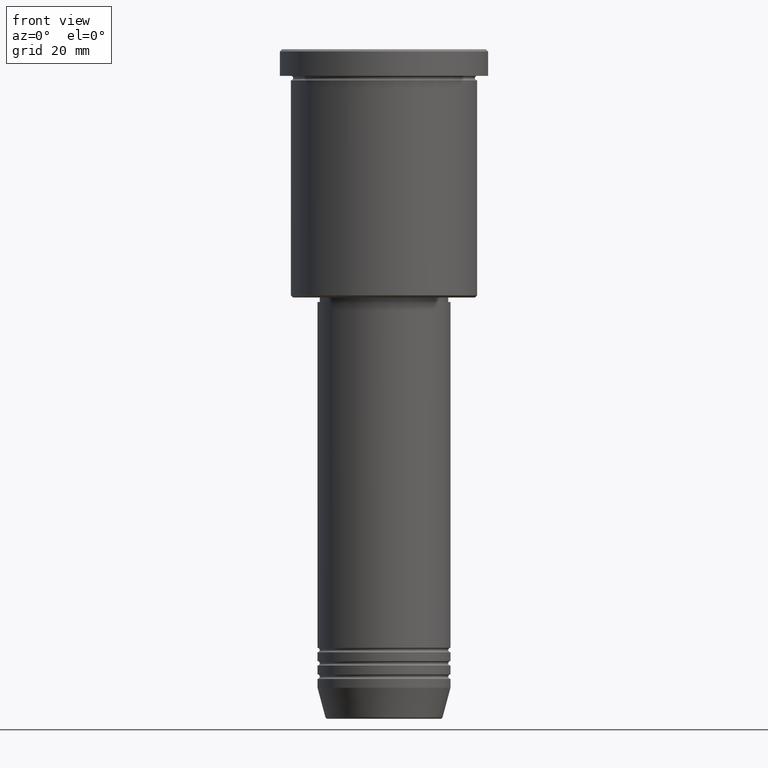
[diagram: clean part render]
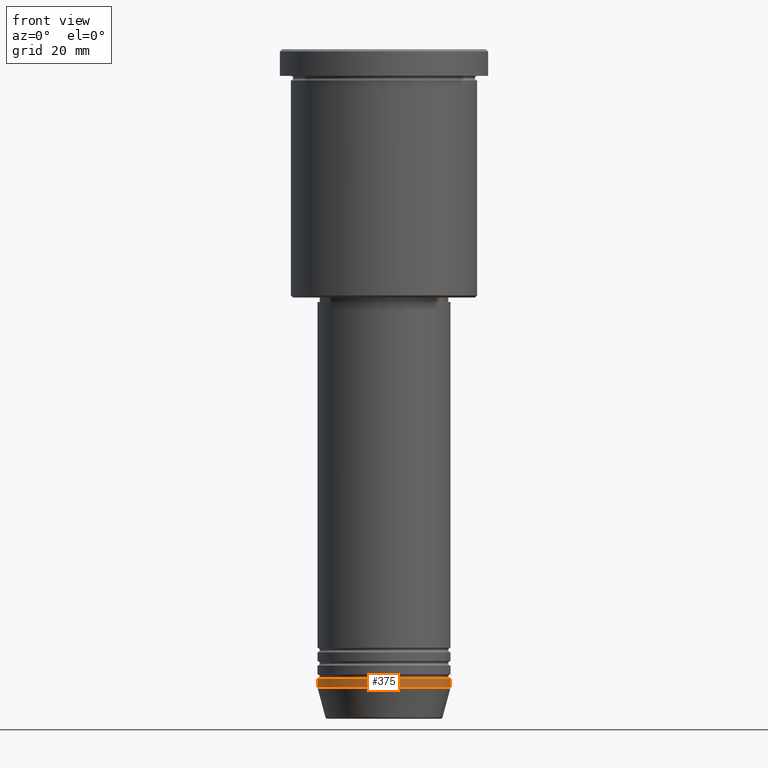
[diagram: same view with one face highlighted and labeled with its STEP entity id]
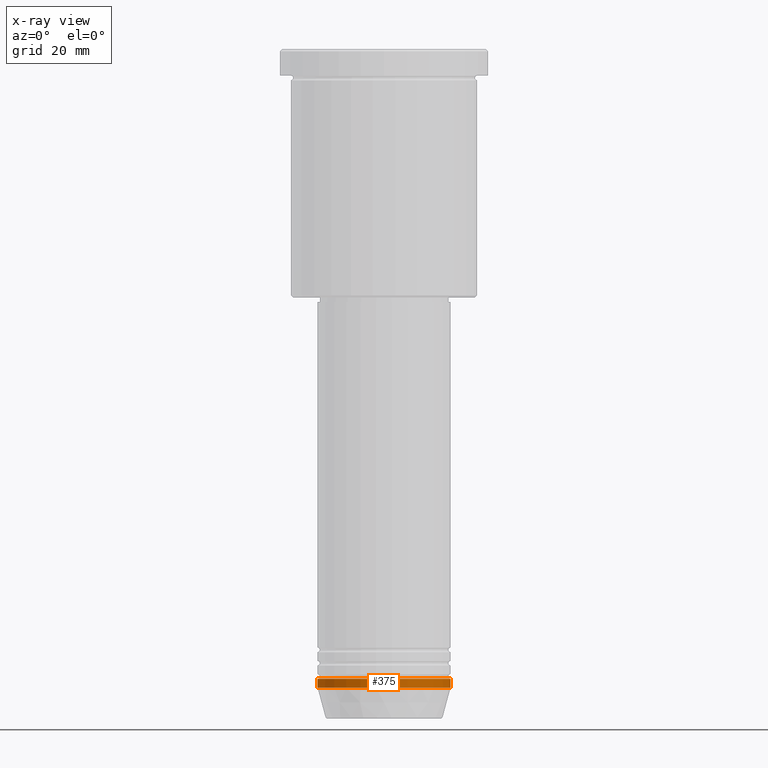
[diagram: x-ray of the same camera — body ghosted, the highlighted face saturated]
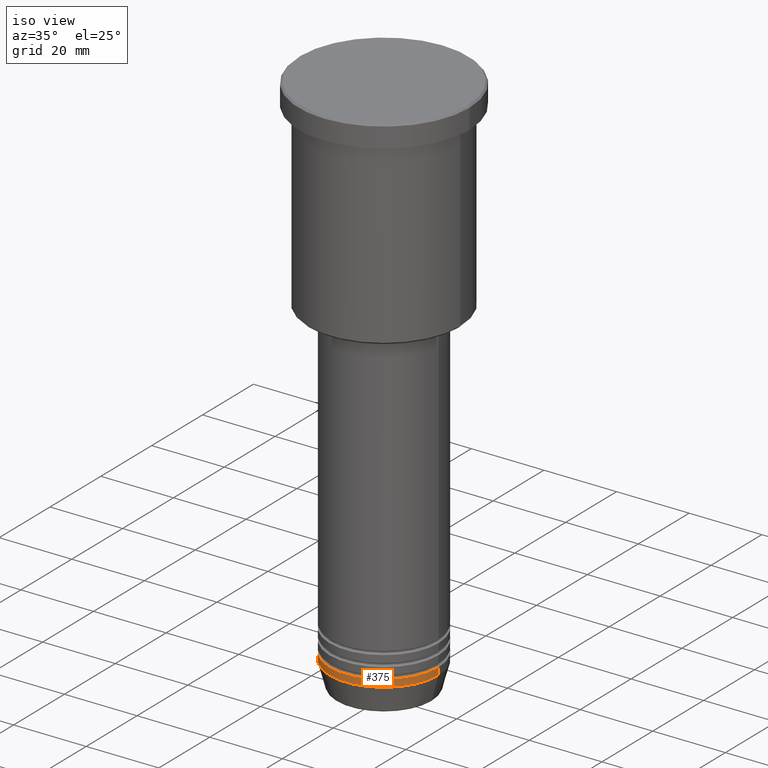
[diagram: same view with one face highlighted and labeled with its STEP entity id]
A machine part, front view. The second image highlights one B-rep face of the part: STEP entity #375.
The next image is the same camera in x-ray: the body ghosted, the highlighted face saturated — about 0% of this face is hidden behind the body in this view.
A second angle (iso view) of the same face is appended — the face is thin or edge-on in the first view.
In plain terms, the highlighted cylindrical surface (partial cylindrical patch) has radius 15 mm, axis along (-0, -0, 1).
Its self-contained STEP definition (entity closure, byte-faithful):
#63 = DIRECTION ( 'NONE',  ( -0.000000000000000000, -0.000000000000000000, 1.000000000000000000 ) ) ;
#67 = VERTEX_POINT ( 'NONE', #775 ) ;
#123 = EDGE_LOOP ( 'NONE', ( #592, #1155, #390, #716 ) ) ;
#145 = CARTESIAN_POINT ( 'NONE',  ( 15.00000000000000000, 0.000000000000000000, -142.0000000000000284 ) ) ;
#153 = LINE ( 'NONE', #1052, #652 ) ;
#182 = VERTEX_POINT ( 'NONE', #688 ) ;
#210 = AXIS2_PLACEMENT_3D ( 'NONE', #1145, #876, #234 ) ;
#219 = DIRECTION ( 'NONE',  ( -0.000000000000000000, -0.000000000000000000, 1.000000000000000000 ) ) ;
#234 = DIRECTION ( 'NONE',  ( 1.000000000000000000, 0.000000000000000000, 0.000000000000000000 ) ) ;
#238 = DIRECTION ( 'NONE',  ( -0.000000000000000000, -0.000000000000000000, 1.000000000000000000 ) ) ;
#256 = EDGE_CURVE ( 'NONE', #67, #313, #499, .T. ) ;
#268 = VERTEX_POINT ( 'NONE', #145 ) ;
#293 = EDGE_CURVE ( 'NONE', #67, #182, #153, .T. ) ;
#313 = VERTEX_POINT ( 'NONE', #1082 ) ;
#359 = LINE ( 'NONE', #819, #811 ) ;
#375 = ADVANCED_FACE ( 'NONE', ( #1065 ), #970, .T. ) ;
#390 = ORIENTED_EDGE ( 'NONE', *, *, #1012, .T. ) ;
#450 = DIRECTION ( 'NONE',  ( -0.000000000000000000, -0.000000000000000000, 1.000000000000000000 ) ) ;
#499 = CIRCLE ( 'NONE', #1151, 15.00000000000000000 ) ;
#583 = CARTESIAN_POINT ( 'NONE',  ( 0.000000000000000000, 0.000000000000000000, -142.0000000000000284 ) ) ;
#592 = ORIENTED_EDGE ( 'NONE', *, *, #293, .F. ) ;
#652 = VECTOR ( 'NONE', #219, 1000.000000000000000 ) ;
#688 = CARTESIAN_POINT ( 'NONE',  ( -15.00000000000000000, 1.836970198721029589E-15, -142.0000000000000284 ) ) ;
#716 = ORIENTED_EDGE ( 'NONE', *, *, #1113, .F. ) ;
#720 = CIRCLE ( 'NONE', #972, 15.00000000000000000 ) ;
#775 = CARTESIAN_POINT ( 'NONE',  ( -15.00000000000000000, 1.836970198721029589E-15, -144.0000000000000284 ) ) ;
#811 = VECTOR ( 'NONE', #450, 1000.000000000000000 ) ;
#819 = CARTESIAN_POINT ( 'NONE',  ( 15.00000000000000000, 0.000000000000000000, 0.000000000000000000 ) ) ;
#870 = DIRECTION ( 'NONE',  ( 1.000000000000000000, 0.000000000000000000, 0.000000000000000000 ) ) ;
#876 = DIRECTION ( 'NONE',  ( -0.000000000000000000, -0.000000000000000000, 1.000000000000000000 ) ) ;
#956 = DIRECTION ( 'NONE',  ( 1.000000000000000000, 0.000000000000000000, 0.000000000000000000 ) ) ;
#970 = CYLINDRICAL_SURFACE ( 'NONE', #210, 15.00000000000000000 ) ;
#972 = AXIS2_PLACEMENT_3D ( 'NONE', #583, #238, #956 ) ;
#1012 = EDGE_CURVE ( 'NONE', #313, #268, #359, .T. ) ;
#1052 = CARTESIAN_POINT ( 'NONE',  ( -15.00000000000000000, 1.836970198721029589E-15, 0.000000000000000000 ) ) ;
#1065 = FACE_OUTER_BOUND ( 'NONE', #123, .T. ) ;
#1069 = CARTESIAN_POINT ( 'NONE',  ( 0.000000000000000000, 0.000000000000000000, -144.0000000000000284 ) ) ;
#1082 = CARTESIAN_POINT ( 'NONE',  ( 15.00000000000000000, 0.000000000000000000, -144.0000000000000284 ) ) ;
#1113 = EDGE_CURVE ( 'NONE', #182, #268, #720, .T. ) ;
#1145 = CARTESIAN_POINT ( 'NONE',  ( 0.000000000000000000, 0.000000000000000000, 0.000000000000000000 ) ) ;
#1151 = AXIS2_PLACEMENT_3D ( 'NONE', #1069, #63, #870 ) ;
#1155 = ORIENTED_EDGE ( 'NONE', *, *, #256, .T. ) ;